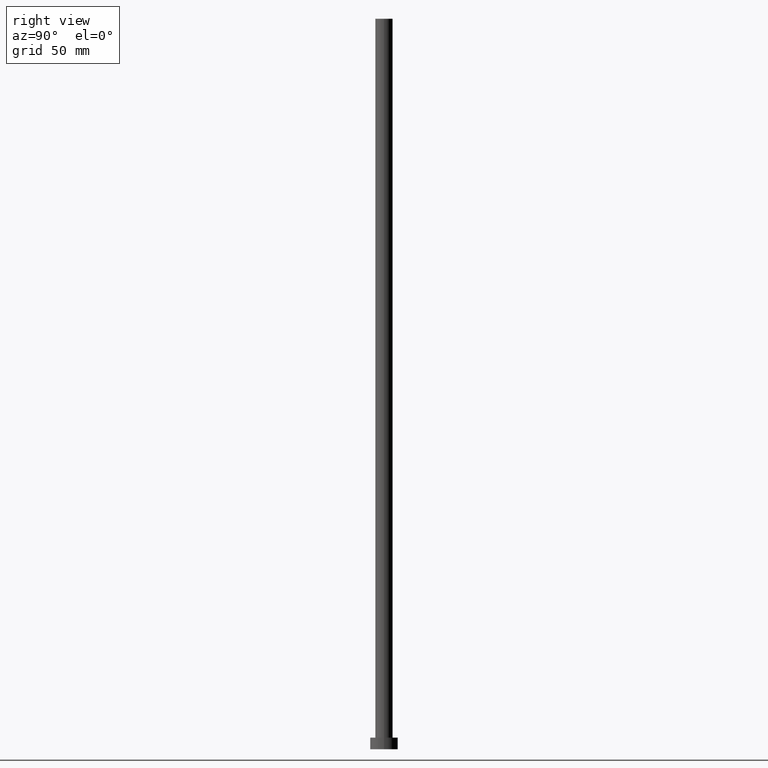
[diagram: clean part render]
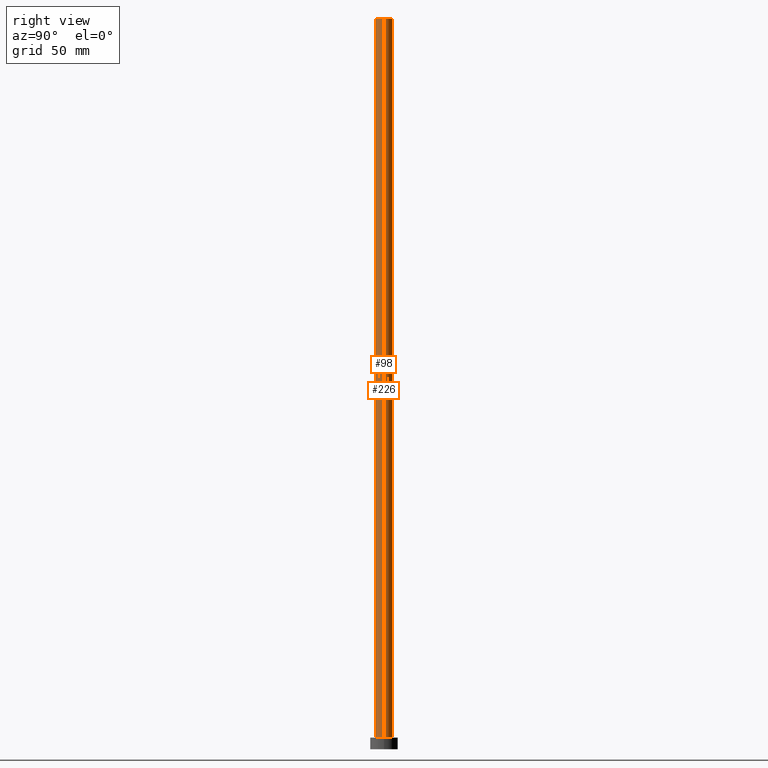
[diagram: same view with one multi-face feature highlighted, each face labeled with its STEP entity id]
A machine part, right view. The highlighted faces form ONE feature: a constant-radius fillet chain: 2 tangent blend faces with common blend radius 3.75 mm. The faces share edges in the B-rep.
Their STEP definitions:
[1] entity #98 (Cylinder):
#2 = AXIS2_PLACEMENT_3D ( 'NONE', #172, #11, #174 ) ;
#11 = DIRECTION ( 'NONE',  ( 0.000000000000000000, 0.000000000000000000, 1.000000000000000000 ) ) ;
#15 = DIRECTION ( 'NONE',  ( 0.000000000000000000, 0.000000000000000000, 1.000000000000000000 ) ) ;
#16 = ORIENTED_EDGE ( 'NONE', *, *, #195, .T. ) ;
#38 = ORIENTED_EDGE ( 'NONE', *, *, #116, .T. ) ;
#48 = CARTESIAN_POINT ( 'NONE',  ( 0.000000000000000000, 0.000000000000000000, 315.0000000000000000 ) ) ;
#57 = CARTESIAN_POINT ( 'NONE',  ( -3.750000000000000000, 0.000000000000000000, 5.000000000000000000 ) ) ;
#58 = VERTEX_POINT ( 'NONE', #92 ) ;
#59 = CIRCLE ( 'NONE', #170, 3.750000000000000000 ) ;
#87 = DIRECTION ( 'NONE',  ( -0.000000000000000000, -0.000000000000000000, -1.000000000000000000 ) ) ;
#92 = CARTESIAN_POINT ( 'NONE',  ( 3.750000000000000000, 4.592425496802573972E-16, 5.000000000000000000 ) ) ;
#94 = CARTESIAN_POINT ( 'NONE',  ( 0.000000000000000000, 0.000000000000000000, 315.0000000000000000 ) ) ;
#97 = CARTESIAN_POINT ( 'NONE',  ( -3.750000000000000000, 0.000000000000000000, 315.0000000000000000 ) ) ;
#98 = ADVANCED_FACE ( 'NONE', ( #190 ), #228, .T. ) ;
#110 = DIRECTION ( 'NONE',  ( 1.000000000000000000, 0.000000000000000000, 0.000000000000000000 ) ) ;
#112 = DIRECTION ( 'NONE',  ( -0.000000000000000000, -0.000000000000000000, -1.000000000000000000 ) ) ;
#113 = CARTESIAN_POINT ( 'NONE',  ( -3.750000000000000000, 0.000000000000000000, 315.0000000000000000 ) ) ;
#116 = EDGE_CURVE ( 'NONE', #227, #255, #245, .T. ) ;
#119 = EDGE_LOOP ( 'NONE', ( #239, #197, #38, #16 ) ) ;
#135 = CIRCLE ( 'NONE', #2, 3.750000000000000000 ) ;
#140 = VECTOR ( 'NONE', #112, 1000.000000000000000 ) ;
#145 = LINE ( 'NONE', #250, #140 ) ;
#149 = EDGE_CURVE ( 'NONE', #227, #159, #59, .T. ) ;
#159 = VERTEX_POINT ( 'NONE', #192 ) ;
#169 = DIRECTION ( 'NONE',  ( -0.000000000000000000, -0.000000000000000000, -1.000000000000000000 ) ) ;
#170 = AXIS2_PLACEMENT_3D ( 'NONE', #48, #15, #110 ) ;
#172 = CARTESIAN_POINT ( 'NONE',  ( 0.000000000000000000, 0.000000000000000000, 5.000000000000000000 ) ) ;
#173 = EDGE_CURVE ( 'NONE', #159, #58, #145, .T. ) ;
#174 = DIRECTION ( 'NONE',  ( 1.000000000000000000, 0.000000000000000000, 0.000000000000000000 ) ) ;
#190 = FACE_OUTER_BOUND ( 'NONE', #119, .T. ) ;
#192 = CARTESIAN_POINT ( 'NONE',  ( 3.750000000000000000, 4.592425496802573972E-16, 315.0000000000000000 ) ) ;
#195 = EDGE_CURVE ( 'NONE', #255, #58, #135, .T. ) ;
#196 = AXIS2_PLACEMENT_3D ( 'NONE', #94, #87, #207 ) ;
#197 = ORIENTED_EDGE ( 'NONE', *, *, #149, .F. ) ;
#207 = DIRECTION ( 'NONE',  ( -1.000000000000000000, 0.000000000000000000, 0.000000000000000000 ) ) ;
#225 = VECTOR ( 'NONE', #169, 1000.000000000000000 ) ;
#227 = VERTEX_POINT ( 'NONE', #97 ) ;
#228 = CYLINDRICAL_SURFACE ( 'NONE', #196, 3.750000000000000000 ) ;
#239 = ORIENTED_EDGE ( 'NONE', *, *, #173, .F. ) ;
#245 = LINE ( 'NONE', #113, #225 ) ;
#250 = CARTESIAN_POINT ( 'NONE',  ( 3.750000000000000000, 4.592425496802573972E-16, 315.0000000000000000 ) ) ;
#255 = VERTEX_POINT ( 'NONE', #57 ) ;
[2] entity #226 (Cylinder):
#26 = EDGE_CURVE ( 'NONE', #159, #227, #95, .T. ) ;
#27 = DIRECTION ( 'NONE',  ( 0.000000000000000000, 0.000000000000000000, 1.000000000000000000 ) ) ;
#37 = EDGE_LOOP ( 'NONE', ( #211, #137, #141, #42 ) ) ;
#42 = ORIENTED_EDGE ( 'NONE', *, *, #116, .F. ) ;
#54 = CYLINDRICAL_SURFACE ( 'NONE', #167, 3.750000000000000000 ) ;
#57 = CARTESIAN_POINT ( 'NONE',  ( -3.750000000000000000, 0.000000000000000000, 5.000000000000000000 ) ) ;
#58 = VERTEX_POINT ( 'NONE', #92 ) ;
#75 = DIRECTION ( 'NONE',  ( 0.000000000000000000, 0.000000000000000000, 1.000000000000000000 ) ) ;
#76 = CIRCLE ( 'NONE', #243, 3.750000000000000000 ) ;
#92 = CARTESIAN_POINT ( 'NONE',  ( 3.750000000000000000, 4.592425496802573972E-16, 5.000000000000000000 ) ) ;
#95 = CIRCLE ( 'NONE', #177, 3.750000000000000000 ) ;
#97 = CARTESIAN_POINT ( 'NONE',  ( -3.750000000000000000, 0.000000000000000000, 315.0000000000000000 ) ) ;
#99 = DIRECTION ( 'NONE',  ( -1.000000000000000000, 0.000000000000000000, 0.000000000000000000 ) ) ;
#112 = DIRECTION ( 'NONE',  ( -0.000000000000000000, -0.000000000000000000, -1.000000000000000000 ) ) ;
#113 = CARTESIAN_POINT ( 'NONE',  ( -3.750000000000000000, 0.000000000000000000, 315.0000000000000000 ) ) ;
#116 = EDGE_CURVE ( 'NONE', #227, #255, #245, .T. ) ;
#137 = ORIENTED_EDGE ( 'NONE', *, *, #173, .T. ) ;
#140 = VECTOR ( 'NONE', #112, 1000.000000000000000 ) ;
#141 = ORIENTED_EDGE ( 'NONE', *, *, #219, .T. ) ;
#145 = LINE ( 'NONE', #250, #140 ) ;
#153 = DIRECTION ( 'NONE',  ( 1.000000000000000000, 0.000000000000000000, 0.000000000000000000 ) ) ;
#159 = VERTEX_POINT ( 'NONE', #192 ) ;
#167 = AXIS2_PLACEMENT_3D ( 'NONE', #218, #231, #99 ) ;
#169 = DIRECTION ( 'NONE',  ( -0.000000000000000000, -0.000000000000000000, -1.000000000000000000 ) ) ;
#173 = EDGE_CURVE ( 'NONE', #159, #58, #145, .T. ) ;
#177 = AXIS2_PLACEMENT_3D ( 'NONE', #201, #27, #180 ) ;
#180 = DIRECTION ( 'NONE',  ( 1.000000000000000000, 0.000000000000000000, 0.000000000000000000 ) ) ;
#192 = CARTESIAN_POINT ( 'NONE',  ( 3.750000000000000000, 4.592425496802573972E-16, 315.0000000000000000 ) ) ;
#201 = CARTESIAN_POINT ( 'NONE',  ( 0.000000000000000000, 0.000000000000000000, 315.0000000000000000 ) ) ;
#211 = ORIENTED_EDGE ( 'NONE', *, *, #26, .F. ) ;
#218 = CARTESIAN_POINT ( 'NONE',  ( 0.000000000000000000, 0.000000000000000000, 315.0000000000000000 ) ) ;
#219 = EDGE_CURVE ( 'NONE', #58, #255, #76, .T. ) ;
#225 = VECTOR ( 'NONE', #169, 1000.000000000000000 ) ;
#226 = ADVANCED_FACE ( 'NONE', ( #229 ), #54, .T. ) ;
#227 = VERTEX_POINT ( 'NONE', #97 ) ;
#229 = FACE_OUTER_BOUND ( 'NONE', #37, .T. ) ;
#231 = DIRECTION ( 'NONE',  ( -0.000000000000000000, -0.000000000000000000, -1.000000000000000000 ) ) ;
#243 = AXIS2_PLACEMENT_3D ( 'NONE', #251, #75, #153 ) ;
#245 = LINE ( 'NONE', #113, #225 ) ;
#250 = CARTESIAN_POINT ( 'NONE',  ( 3.750000000000000000, 4.592425496802573972E-16, 315.0000000000000000 ) ) ;
#251 = CARTESIAN_POINT ( 'NONE',  ( 0.000000000000000000, 0.000000000000000000, 5.000000000000000000 ) ) ;
#255 = VERTEX_POINT ( 'NONE', #57 ) ;